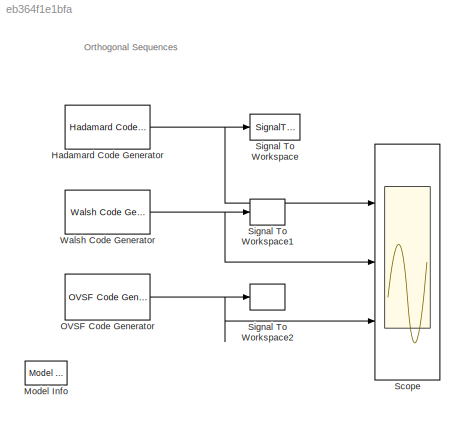
MODEL slx_eb364f1e1bfa
KIND model
BLOCK [Reference] Hadamard Code Generator  REF=commseqgen2/Hadamard
Code Generator
  Ports = [0, 1]
  SourceBlock = commseqgen2/Hadamard\nCode Generator
  SourceType = Hadamard Code Generator
  frameBased = off
  index = 31
  length = 64
  outDataType = double
  sampPerFrame = 1
  ts = 1
BLOCK [Reference] Model Info  REF=simulink/Model-Wide
Utilities/Model Info
  BlockCM = None
  DisplayStringWithTags = Info
  Frame = on
  HorizontalTextAlignment = Center
  InitialBlockCM = None
  LeftAlignmentValue = 0.5
  MaskDisplayString = Info
  Ports = []
  SourceBlock = simulink/Model-Wide\nUtilities/Model Info
  SourceBlockDiagram = doc_ortho
  SourceType = CMBlock
  TagMaxNumber = 20
BLOCK [Reference] OVSF Code Generator  REF=commseqgen2/OVSF Code
Generator
  Ports = [0, 1]
  SourceBlock = commseqgen2/OVSF Code\nGenerator
  SourceType = OVSF Code Generator
  frameBased = off
  index = 31
  outDataType = double
  sampPerFrame = 1
  spreadFact = 64
  ts = 1
BLOCK [Scope] Scope
  DataFormat = StructureWithTime
  Floating = off
  NumInputPorts = 3
  Ports = [3]
  SampleTime = 0
  ShowLegends = off
  YMax = 1.5~1.5~1.5
  YMin = -1.5~-1.5~-1.5
BLOCK [SignalToWorkspace] Signal To Workspace
  CopyFcn = dspblkcopystw(gcbh);
  MaxDataPoints = inf
  Ports = [1]
  Save2DSignal = 3-D array (concatenate along third dimension)
  VariableName = had
BLOCK [SignalToWorkspace] Signal To Workspace1
  CopyFcn = dspblkcopystw(gcbh);
  MaxDataPoints = inf
  Ports = [1]
  Save2DSignal = 3-D array (concatenate along third dimension)
  VariableName = walsh
BLOCK [SignalToWorkspace] Signal To Workspace2
  CopyFcn = dspblkcopystw(gcbh);
  MaxDataPoints = inf
  Ports = [1]
  Save2DSignal = 3-D array (concatenate along third dimension)
  VariableName = ovsf
BLOCK [Reference] Walsh Code Generator  REF=commseqgen2/Walsh Code
Generator
  Ports = [0, 1]
  SourceBlock = commseqgen2/Walsh Code\nGenerator
  SourceType = Walsh Code Generator
  frameBased = off
  index = 31
  length = 64
  outDataType = double
  sampPerFrame = 1
  ts = 1
ANNOTATION (root): Orthogonal Sequences
NET Hadamard Code Generator:1 -> Scope:1, Signal To Workspace:1
NET OVSF Code Generator:1 -> Scope:3, Signal To Workspace2:1
NET Walsh Code Generator:1 -> Scope:2, Signal To Workspace1:1
note: NET lines group one-source signal fan-out (src -> all destinations, sorted); 1:1 wires keep LINE
